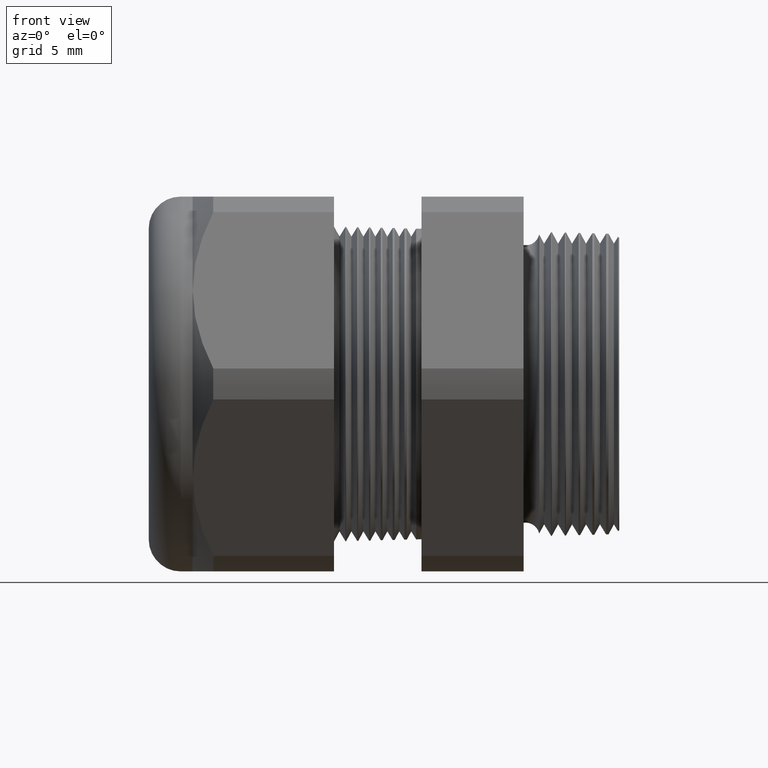
[diagram: clean part render]
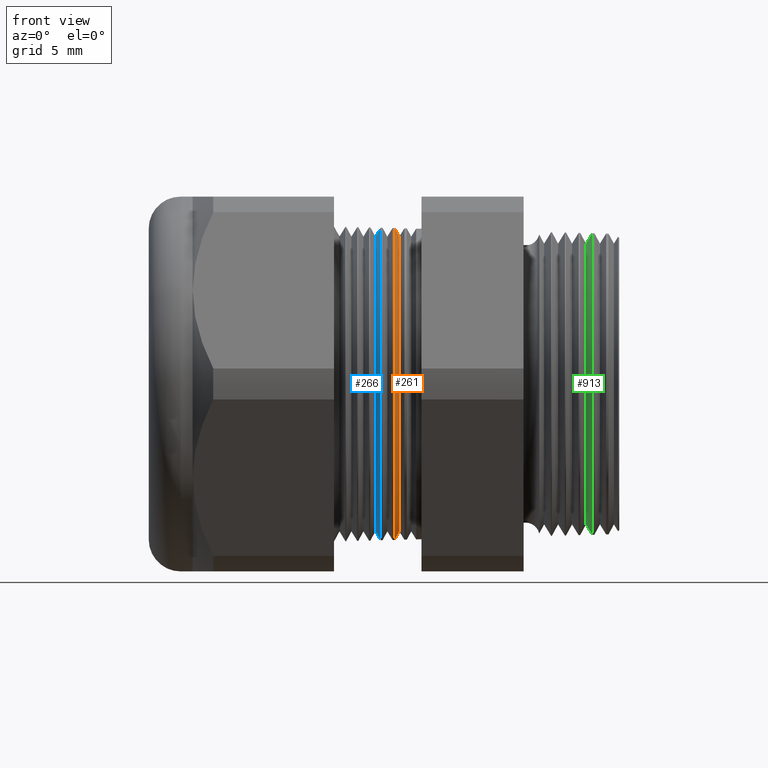
[diagram: same view with three faces highlighted in distinct colors, each labeled with its STEP entity id]
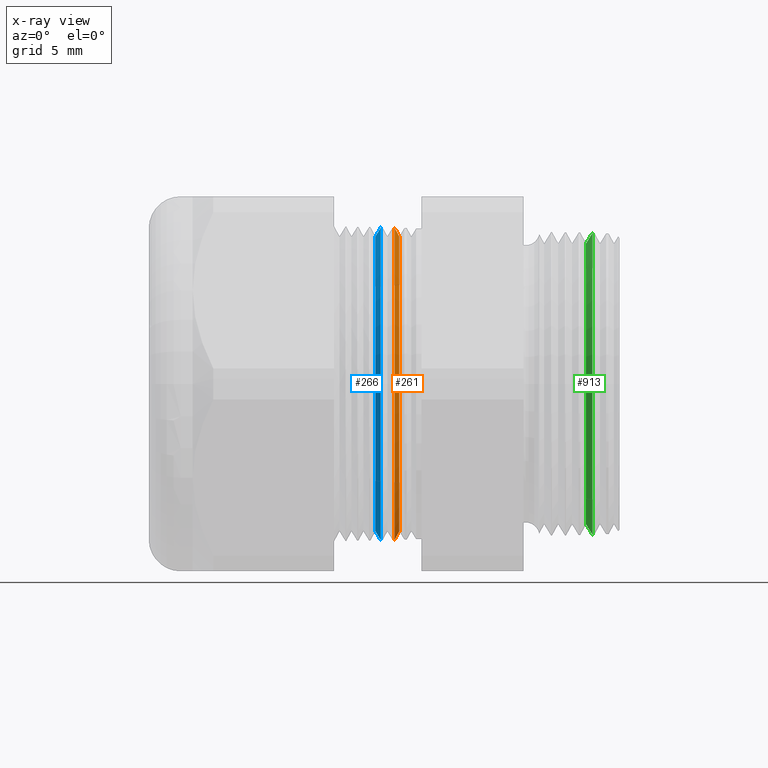
[diagram: x-ray of the same camera — body ghosted, the three highlighted faces saturated]
A machine part, front view with three faces highlighted in distinct colors.
The next image is the same camera in x-ray (body ghosted, the three faces saturated) — at least one of them is partly hidden behind the body in this view.
Their STEP definitions:

[orange] entity #261 — the highlighted conical surface has half-angle 61.5 deg.
#261 = ADVANCED_FACE ( 'NONE', ( #1614 ), #1676, .T. ) ;
#262 = EDGE_LOOP ( 'NONE', ( #316, #317, #319, #320 ) ) ;
#316 = ORIENTED_EDGE ( 'NONE', *, *, #614, .F. ) ;
#317 = ORIENTED_EDGE ( 'NONE', *, *, #318, .F. ) ;
#318 = EDGE_CURVE ( 'NONE', #576, #649, #1679, .T. ) ;
#319 = ORIENTED_EDGE ( 'NONE', *, *, #689, .T. ) ;
#320 = ORIENTED_EDGE ( 'NONE', *, *, #507, .T. ) ;
#507 = EDGE_CURVE ( 'NONE', #618, #615, #2137, .T. ) ;
#576 = VERTEX_POINT ( 'NONE', #2283 ) ;
#614 = EDGE_CURVE ( 'NONE', #649, #615, #2332, .T. ) ;
#615 = VERTEX_POINT ( 'NONE', #2328 ) ;
#618 = VERTEX_POINT ( 'NONE', #2386 ) ;
#649 = VERTEX_POINT ( 'NONE', #2454 ) ;
#689 = EDGE_CURVE ( 'NONE', #576, #618, #2512, .T. ) ;
#1614 = FACE_OUTER_BOUND ( 'NONE', #262, .T. ) ;
#1672 = DIRECTION ( 'NONE',  ( 0.0000000000000000000, 0.0000000000000000000, 1.000000000000000000 ) ) ;
#1673 = DIRECTION ( 'NONE',  ( -1.000000000000000000, 0.0000000000000000000, 0.0000000000000000000 ) ) ;
#1674 = CARTESIAN_POINT ( 'NONE',  ( -0.6354330708661414300, 0.0000000000000000000, 0.0000000000000000000 ) ) ;
#1675 = AXIS2_PLACEMENT_3D ( 'NONE', #1674, #1673, #1672 ) ;
#1676 = CONICAL_SURFACE ( 'NONE', #1675, 0.3950000000000000200, 1.073377489976500500 ) ;
#1679 = CIRCLE ( 'NONE', #1739, 0.3696307351718083300 ) ;
#1735 = DIRECTION ( 'NONE',  ( 0.0000000000000000000, 0.0000000000000000000, -1.000000000000000000 ) ) ;
#1737 = DIRECTION ( 'NONE',  ( 1.000000000000000000, 0.0000000000000000000, 0.0000000000000000000 ) ) ;
#1738 = CARTESIAN_POINT ( 'NONE',  ( -0.6216586839320373800, 0.0000000000000000000, 0.0000000000000000000 ) ) ;
#1739 = AXIS2_PLACEMENT_3D ( 'NONE', #1738, #1737, #1735 ) ;
#2134 = DIRECTION ( 'NONE',  ( 0.0000000000000000000, 0.0000000000000000000, 1.000000000000000000 ) ) ;
#2135 = DIRECTION ( 'NONE',  ( 1.000000000000000000, 0.0000000000000000000, 0.0000000000000000000 ) ) ;
#2136 = AXIS2_PLACEMENT_3D ( 'NONE', #2142, #2135, #2134 ) ;
#2137 = CIRCLE ( 'NONE', #2136, 0.3910154603959032400 ) ;
#2142 = CARTESIAN_POINT ( 'NONE',  ( -0.6332696423776619200, 0.0000000000000000000, 0.0000000000000000000 ) ) ;
#2283 = CARTESIAN_POINT ( 'NONE',  ( -0.6216586839320373800, 0.0000000000000000000, 0.3696307351718083300 ) ) ;
#2328 = CARTESIAN_POINT ( 'NONE',  ( -0.6332696423776619200, 4.789392262317096300E-017, -0.3910154603959032400 ) ) ;
#2329 = DIRECTION ( 'NONE',  ( -0.4771587602596191200, 1.076240564057387800E-016, -0.8788171126619595000 ) ) ;
#2330 = VECTOR ( 'NONE', #2329, 39.37007874015748100 ) ;
#2331 = CARTESIAN_POINT ( 'NONE',  ( -0.6354330708661414300, 4.837354856632045600E-017, -0.3950000000000000200 ) ) ;
#2332 = LINE ( 'NONE', #2331, #2330 ) ;
#2386 = CARTESIAN_POINT ( 'NONE',  ( -0.6332696423776619200, 0.0000000000000000000, 0.3910154603959032400 ) ) ;
#2454 = CARTESIAN_POINT ( 'NONE',  ( -0.6216586839320373800, 4.657614643428047800E-017, -0.3696307351718083300 ) ) ;
#2509 = DIRECTION ( 'NONE',  ( -0.4771587602596191200, 0.0000000000000000000, 0.8788171126619595000 ) ) ;
#2510 = VECTOR ( 'NONE', #2509, 39.37007874015748100 ) ;
#2511 = CARTESIAN_POINT ( 'NONE',  ( -0.6354330708661414300, 0.0000000000000000000, 0.3950000000000000200 ) ) ;
#2512 = LINE ( 'NONE', #2511, #2510 ) ;

[blue] entity #266 — the highlighted conical surface has half-angle 58.5 deg.
#263 = EDGE_CURVE ( 'NONE', #679, #678, #1677, .T. ) ;
#266 = ADVANCED_FACE ( 'NONE', ( #1666 ), #1665, .T. ) ;
#267 = EDGE_LOOP ( 'NONE', ( #268, #269, #270, #271 ) ) ;
#268 = ORIENTED_EDGE ( 'NONE', *, *, #570, .F. ) ;
#269 = ORIENTED_EDGE ( 'NONE', *, *, #263, .T. ) ;
#270 = ORIENTED_EDGE ( 'NONE', *, *, #629, .T. ) ;
#271 = ORIENTED_EDGE ( 'NONE', *, *, #519, .T. ) ;
#519 = EDGE_CURVE ( 'NONE', #573, #681, #2174, .T. ) ;
#570 = EDGE_CURVE ( 'NONE', #679, #681, #2235, .T. ) ;
#573 = VERTEX_POINT ( 'NONE', #2289 ) ;
#629 = EDGE_CURVE ( 'NONE', #678, #573, #2370, .T. ) ;
#678 = VERTEX_POINT ( 'NONE', #2458 ) ;
#679 = VERTEX_POINT ( 'NONE', #2457 ) ;
#681 = VERTEX_POINT ( 'NONE', #2456 ) ;
#1660 = DIRECTION ( 'NONE',  ( 0.0000000000000000000, 0.0000000000000000000, -1.000000000000000000 ) ) ;
#1661 = DIRECTION ( 'NONE',  ( 1.000000000000000000, 0.0000000000000000000, 0.0000000000000000000 ) ) ;
#1662 = CARTESIAN_POINT ( 'NONE',  ( -0.6816586839320374300, 0.0000000000000000000, 0.0000000000000000000 ) ) ;
#1663 = AXIS2_PLACEMENT_3D ( 'NONE', #1662, #1661, #1660 ) ;
#1665 = CONICAL_SURFACE ( 'NONE', #1663, 0.3696307351718083300, 1.021017612416700500 ) ;
#1666 = FACE_OUTER_BOUND ( 'NONE', #267, .T. ) ;
#1667 = DIRECTION ( 'NONE',  ( 0.0000000000000000000, 0.0000000000000000000, -1.000000000000000000 ) ) ;
#1668 = DIRECTION ( 'NONE',  ( 1.000000000000000000, 0.0000000000000000000, 0.0000000000000000000 ) ) ;
#1670 = CARTESIAN_POINT ( 'NONE',  ( -0.6816586839320374300, 0.0000000000000000000, 0.0000000000000000000 ) ) ;
#1671 = AXIS2_PLACEMENT_3D ( 'NONE', #1670, #1668, #1667 ) ;
#1677 = CIRCLE ( 'NONE', #1671, 0.3696307351718083300 ) ;
#2115 = CARTESIAN_POINT ( 'NONE',  ( -0.6679968485477146800, 0.0000000000000000000, 0.0000000000000000000 ) ) ;
#2171 = DIRECTION ( 'NONE',  ( 0.0000000000000000000, 0.0000000000000000000, -1.000000000000000000 ) ) ;
#2172 = DIRECTION ( 'NONE',  ( -1.000000000000000000, 0.0000000000000000000, 0.0000000000000000000 ) ) ;
#2173 = AXIS2_PLACEMENT_3D ( 'NONE', #2115, #2172, #2171 ) ;
#2174 = CIRCLE ( 'NONE', #2173, 0.3919248242929889200 ) ;
#2233 = VECTOR ( 'NONE', #2295, 39.37007874015748900 ) ;
#2234 = CARTESIAN_POINT ( 'NONE',  ( -0.6816586839320374300, 4.526670966946380000E-017, 0.3696307351718083300 ) ) ;
#2235 = LINE ( 'NONE', #2234, #2233 ) ;
#2289 = CARTESIAN_POINT ( 'NONE',  ( -0.6679968485477146800, 4.799694815767976900E-017, -0.3919248242929889200 ) ) ;
#2295 = DIRECTION ( 'NONE',  ( 0.5224985647159337000, 1.044183048100723500E-016, 0.8526401643541013900 ) ) ;
#2367 = DIRECTION ( 'NONE',  ( 0.5224985647159337000, 0.0000000000000000000, -0.8526401643541013900 ) ) ;
#2368 = VECTOR ( 'NONE', #2367, 39.37007874015748900 ) ;
#2369 = CARTESIAN_POINT ( 'NONE',  ( -0.6816586839320374300, 0.0000000000000000000, -0.3696307351718083300 ) ) ;
#2370 = LINE ( 'NONE', #2369, #2368 ) ;
#2456 = CARTESIAN_POINT ( 'NONE',  ( -0.6679968485477146800, 0.0000000000000000000, 0.3919248242929889200 ) ) ;
#2457 = CARTESIAN_POINT ( 'NONE',  ( -0.6816586839320374300, 0.0000000000000000000, 0.3696307351718083300 ) ) ;
#2458 = CARTESIAN_POINT ( 'NONE',  ( -0.6816586839320374300, 4.667373950772513900E-017, -0.3696307351718083300 ) ) ;

[green] entity #913 — the highlighted conical surface has half-angle 58.5 deg.
#604 = EDGE_CURVE ( 'NONE', #608, #605, #2351, .T. ) ;
#605 = VERTEX_POINT ( 'NONE', #2347 ) ;
#607 = VERTEX_POINT ( 'NONE', #2341 ) ;
#608 = VERTEX_POINT ( 'NONE', #2340 ) ;
#893 = ORIENTED_EDGE ( 'NONE', *, *, #1252, .T. ) ;
#894 = ORIENTED_EDGE ( 'NONE', *, *, #4009, .T. ) ;
#910 = EDGE_CURVE ( 'NONE', #608, #607, #2932, .T. ) ;
#913 = ADVANCED_FACE ( 'NONE', ( #2923 ), #2922, .T. ) ;
#914 = EDGE_LOOP ( 'NONE', ( #966, #967, #893, #894 ) ) ;
#966 = ORIENTED_EDGE ( 'NONE', *, *, #604, .F. ) ;
#967 = ORIENTED_EDGE ( 'NONE', *, *, #910, .T. ) ;
#1252 = EDGE_CURVE ( 'NONE', #607, #1255, #3480, .T. ) ;
#1255 = VERTEX_POINT ( 'NONE', #3476 ) ;
#2340 = CARTESIAN_POINT ( 'NONE',  ( -0.1534707356790751800, 0.0000000000000000000, 0.3521072291010748900 ) ) ;
#2341 = CARTESIAN_POINT ( 'NONE',  ( -0.1534707356790751800, 4.475708527427063000E-017, -0.3521072291010748900 ) ) ;
#2347 = CARTESIAN_POINT ( 'NONE',  ( -0.1375819195166211300, 0.0000000000000000000, 0.3780354205622586400 ) ) ;
#2348 = DIRECTION ( 'NONE',  ( 0.5224985647159352500, 1.044183048100722500E-016, 0.8526401643541005000 ) ) ;
#2349 = VECTOR ( 'NONE', #2348, 39.37007874015748900 ) ;
#2350 = CARTESIAN_POINT ( 'NONE',  ( -0.1534707356790751800, 4.312069910752751700E-017, 0.3521072291010748900 ) ) ;
#2351 = LINE ( 'NONE', #2350, #2349 ) ;
#2917 = DIRECTION ( 'NONE',  ( 0.0000000000000000000, 0.0000000000000000000, -1.000000000000000000 ) ) ;
#2918 = DIRECTION ( 'NONE',  ( 1.000000000000000000, 0.0000000000000000000, 0.0000000000000000000 ) ) ;
#2919 = CARTESIAN_POINT ( 'NONE',  ( -0.1534707356790751800, 0.0000000000000000000, 0.0000000000000000000 ) ) ;
#2920 = AXIS2_PLACEMENT_3D ( 'NONE', #2919, #2918, #2917 ) ;
#2922 = CONICAL_SURFACE ( 'NONE', #2920, 0.3521072291010748900, 1.021017612416698700 ) ;
#2923 = FACE_OUTER_BOUND ( 'NONE', #914, .T. ) ;
#2924 = DIRECTION ( 'NONE',  ( 0.0000000000000000000, 0.0000000000000000000, -1.000000000000000000 ) ) ;
#2925 = DIRECTION ( 'NONE',  ( 1.000000000000000000, 0.0000000000000000000, 0.0000000000000000000 ) ) ;
#2926 = CARTESIAN_POINT ( 'NONE',  ( -0.1534707356790751800, 0.0000000000000000000, 0.0000000000000000000 ) ) ;
#2927 = AXIS2_PLACEMENT_3D ( 'NONE', #2926, #2925, #2924 ) ;
#2932 = CIRCLE ( 'NONE', #2927, 0.3521072291010748900 ) ;
#3476 = CARTESIAN_POINT ( 'NONE',  ( -0.1375819195166211300, 4.629598677558935400E-017, -0.3780354205622586400 ) ) ;
#3477 = DIRECTION ( 'NONE',  ( 0.5224985647159352500, 0.0000000000000000000, -0.8526401643541005000 ) ) ;
#3478 = VECTOR ( 'NONE', #3477, 39.37007874015748900 ) ;
#3479 = CARTESIAN_POINT ( 'NONE',  ( -0.1534707356790751800, 0.0000000000000000000, -0.3521072291010748900 ) ) ;
#3480 = LINE ( 'NONE', #3479, #3478 ) ;
#3706 = DIRECTION ( 'NONE',  ( 0.0000000000000000000, 0.0000000000000000000, -1.000000000000000000 ) ) ;
#3707 = DIRECTION ( 'NONE',  ( -1.000000000000000000, 0.0000000000000000000, 0.0000000000000000000 ) ) ;
#3708 = CARTESIAN_POINT ( 'NONE',  ( -0.1375819195166211300, 0.0000000000000000000, 0.0000000000000000000 ) ) ;
#3709 = AXIS2_PLACEMENT_3D ( 'NONE', #3708, #3707, #3706 ) ;
#3710 = CIRCLE ( 'NONE', #3709, 0.3780354205622585800 ) ;
#4009 = EDGE_CURVE ( 'NONE', #1255, #605, #3710, .T. ) ;